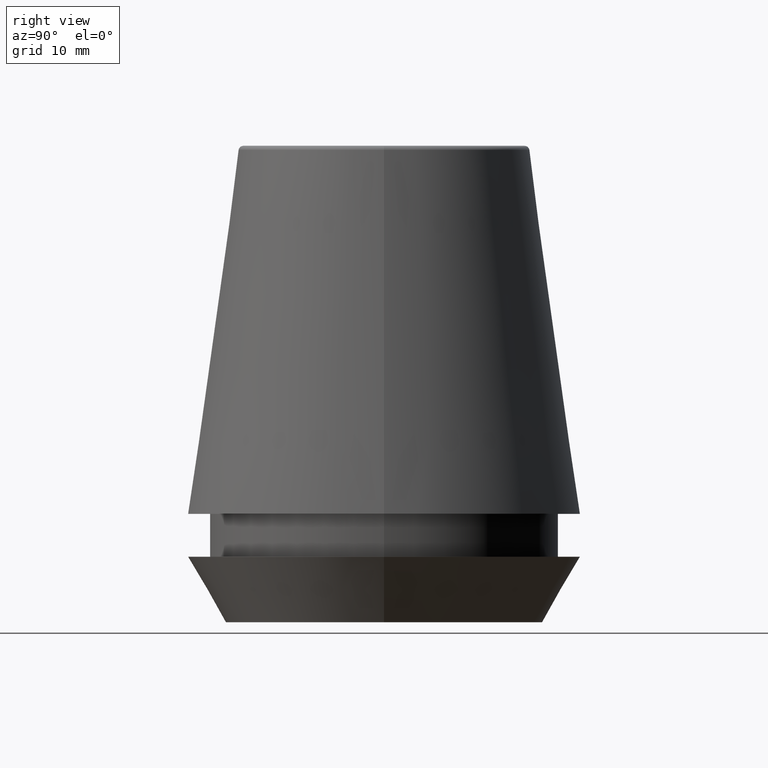
[diagram: clean part render]
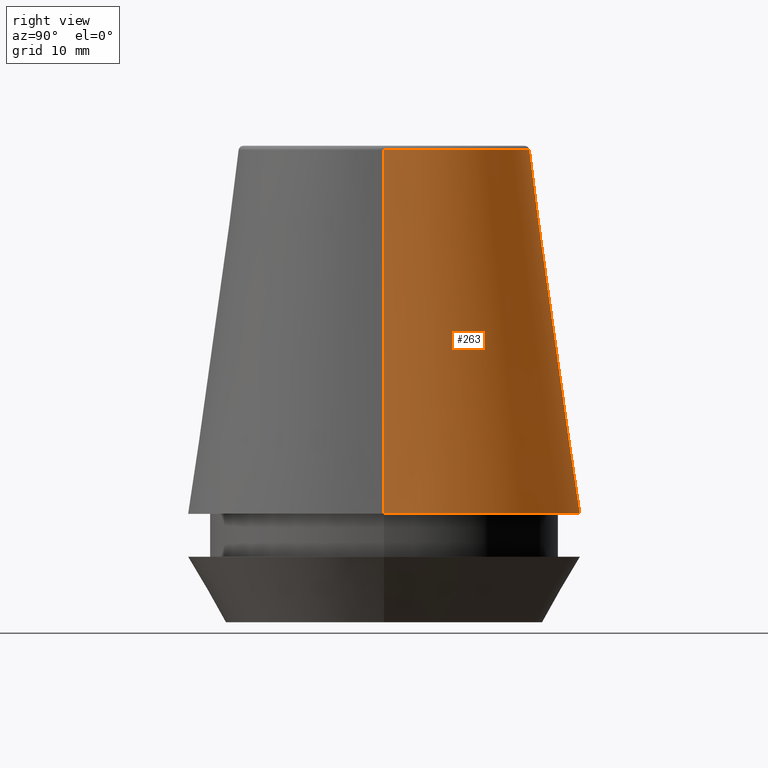
[diagram: same view with one face highlighted and labeled with its STEP entity id]
A machine part, right view. The second image highlights one B-rep face of the part: STEP entity #263.
In plain terms, the highlighted conical surface has half-angle 8 deg.
Its self-contained STEP definition (entity closure, byte-faithful):
#26 = CARTESIAN_POINT ( 'NONE',  ( 0.0000000000000000000, 0.0000000000000000000, 9.099999999999997900 ) ) ;
#58 = CARTESIAN_POINT ( 'NONE',  ( 16.50032537154048700, 2.020707065114692300E-015, 9.099999999999997900 ) ) ;
#76 = VERTEX_POINT ( 'NONE', #331 ) ;
#81 = LINE ( 'NONE', #122, #376 ) ;
#87 = DIRECTION ( 'NONE',  ( 0.0000000000000000000, 0.0000000000000000000, -1.000000000000000000 ) ) ;
#91 = EDGE_CURVE ( 'NONE', #387, #273, #81, .T. ) ;
#93 = DIRECTION ( 'NONE',  ( -1.000000000000000000, 0.0000000000000000000, 0.0000000000000000000 ) ) ;
#102 = CONICAL_SURFACE ( 'NONE', #300, 16.50032537154048700, 0.1396263401595395900 ) ;
#111 = CARTESIAN_POINT ( 'NONE',  ( -12.20600611160694300, 0.0000000000000000000, 39.65566924038402900 ) ) ;
#122 = CARTESIAN_POINT ( 'NONE',  ( 16.50032537154048700, 2.020707065114692300E-015, 9.099999999999997900 ) ) ;
#127 = FACE_OUTER_BOUND ( 'NONE', #341, .T. ) ;
#132 = ORIENTED_EDGE ( 'NONE', *, *, #377, .F. ) ;
#144 = ORIENTED_EDGE ( 'NONE', *, *, #362, .T. ) ;
#152 = EDGE_CURVE ( 'NONE', #387, #315, #372, .T. ) ;
#166 = ORIENTED_EDGE ( 'NONE', *, *, #91, .T. ) ;
#172 = DIRECTION ( 'NONE',  ( 1.000000000000000000, 0.0000000000000000000, 0.0000000000000000000 ) ) ;
#173 = LINE ( 'NONE', #211, #281 ) ;
#176 = CARTESIAN_POINT ( 'NONE',  ( 12.20600611160694300, 1.757755848304969800E-015, 39.65566924038402900 ) ) ;
#188 = DIRECTION ( 'NONE',  ( 0.1391731009600586900, 1.704378926181473100E-017, -0.9902680687415712500 ) ) ;
#207 = AXIS2_PLACEMENT_3D ( 'NONE', #291, #318, #330 ) ;
#211 = CARTESIAN_POINT ( 'NONE',  ( -16.50032537154048700, 0.0000000000000000000, 9.099999999999997900 ) ) ;
#219 = AXIS2_PLACEMENT_3D ( 'NONE', #288, #228, #172 ) ;
#228 = DIRECTION ( 'NONE',  ( -0.0000000000000000000, -0.0000000000000000000, 1.000000000000000000 ) ) ;
#247 = CIRCLE ( 'NONE', #207, 16.50032537154048700 ) ;
#260 = DIRECTION ( 'NONE',  ( -0.1391731009600586900, 0.0000000000000000000, -0.9902680687415712500 ) ) ;
#263 = ADVANCED_FACE ( 'NONE', ( #127 ), #102, .T. ) ;
#273 = VERTEX_POINT ( 'NONE', #58 ) ;
#281 = VECTOR ( 'NONE', #260, 1000.000000000000000 ) ;
#288 = CARTESIAN_POINT ( 'NONE',  ( 0.0000000000000000000, 0.0000000000000000000, 39.65566924038402900 ) ) ;
#291 = CARTESIAN_POINT ( 'NONE',  ( 0.0000000000000000000, 0.0000000000000000000, 9.099999999999997900 ) ) ;
#300 = AXIS2_PLACEMENT_3D ( 'NONE', #26, #87, #93 ) ;
#306 = ORIENTED_EDGE ( 'NONE', *, *, #152, .F. ) ;
#315 = VERTEX_POINT ( 'NONE', #111 ) ;
#318 = DIRECTION ( 'NONE',  ( -0.0000000000000000000, -0.0000000000000000000, 1.000000000000000000 ) ) ;
#330 = DIRECTION ( 'NONE',  ( 1.000000000000000000, 0.0000000000000000000, 0.0000000000000000000 ) ) ;
#331 = CARTESIAN_POINT ( 'NONE',  ( -16.50032537154048700, 0.0000000000000000000, 9.099999999999997900 ) ) ;
#341 = EDGE_LOOP ( 'NONE', ( #306, #166, #144, #132 ) ) ;
#362 = EDGE_CURVE ( 'NONE', #273, #76, #247, .T. ) ;
#372 = CIRCLE ( 'NONE', #219, 12.20600611160694300 ) ;
#376 = VECTOR ( 'NONE', #188, 1000.000000000000000 ) ;
#377 = EDGE_CURVE ( 'NONE', #315, #76, #173, .T. ) ;
#387 = VERTEX_POINT ( 'NONE', #176 ) ;